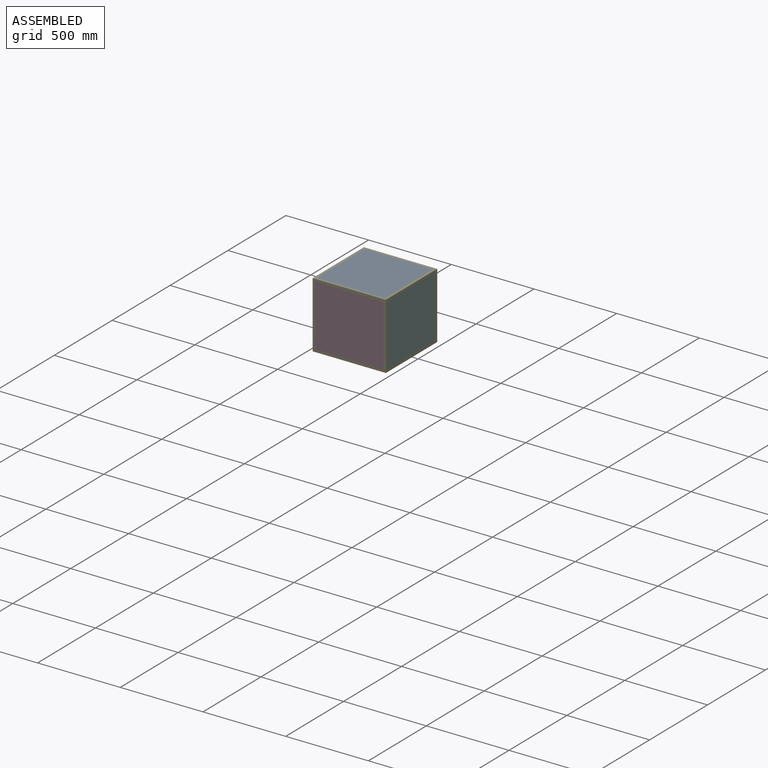
[diagram: assembled view]
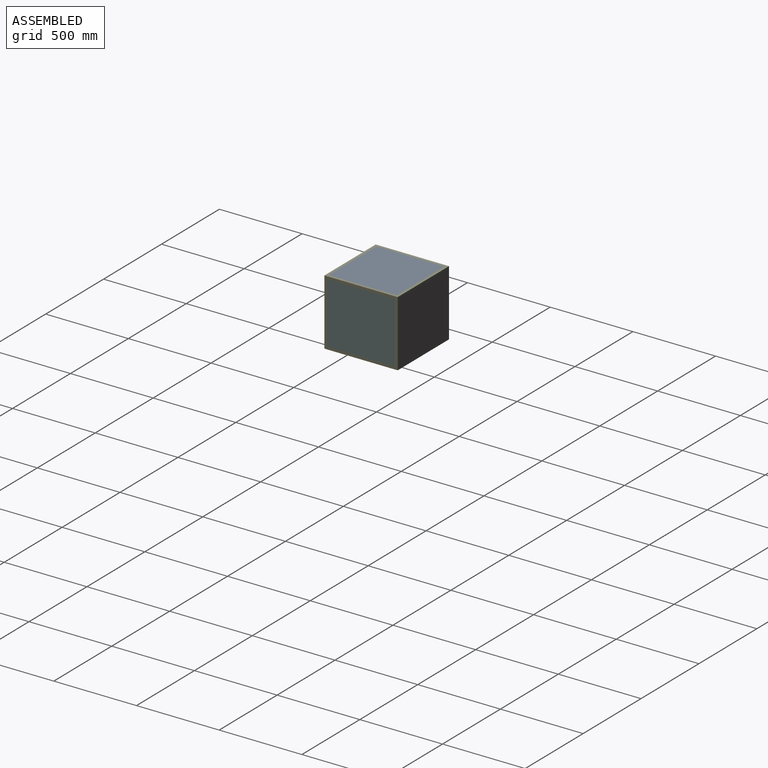
[diagram: assembled view, second angle]
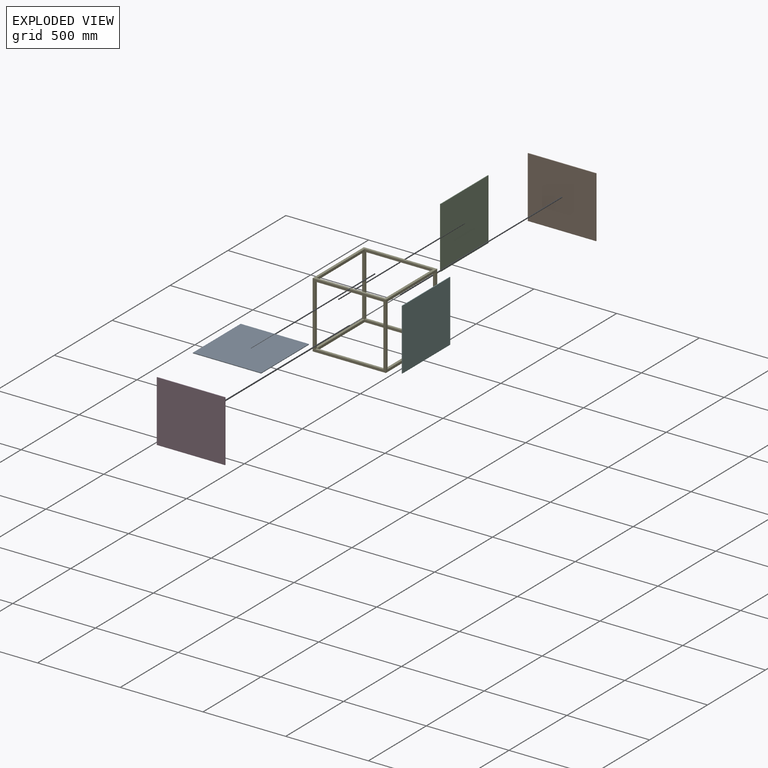
[diagram: exploded view]
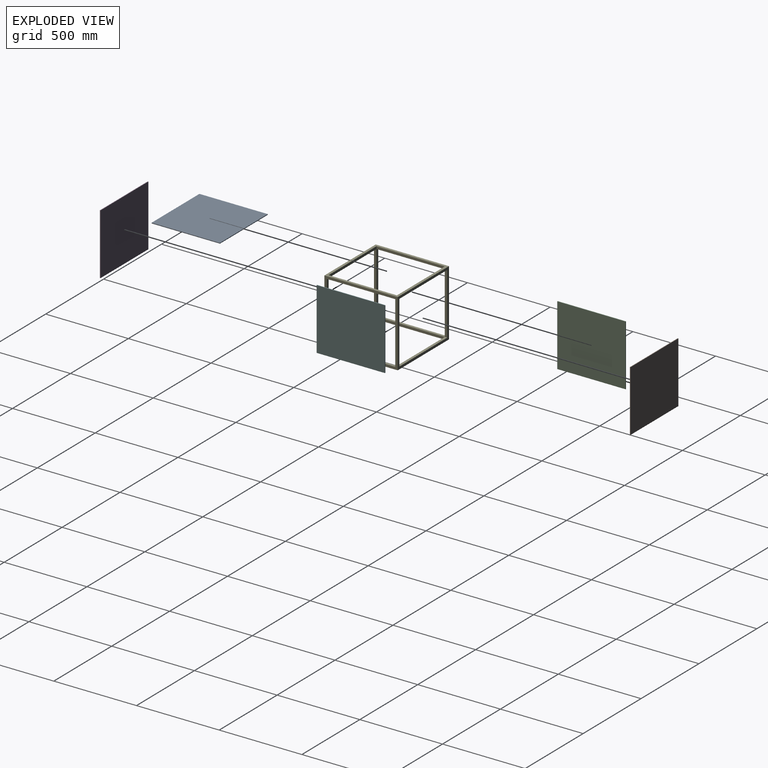
[diagram: exploded view, second angle]
ASSEMBLY  parts=6 mates=15
PART A: 6 faces, bbox 413x413x4 mm
  f0: plane 413x4mm, normal (-1,0,0), area 1652mm2, adj f1,f3,f4,f5
  f1: plane 413x4mm, normal (0,-1,0), area 1652mm2, adj f0,f2,f4,f5
  f2: plane 413x4mm, normal (1,0,0), area 1652mm2, adj f1,f3,f4,f5
  f3: plane 413x4mm, normal (0,1,0), area 1652mm2, adj f0,f2,f4,f5
  f4: plane 413x413mm, normal (0,0,1), area 170569mm2, adj f0,f1,f2,f3
  f5: plane 413x413mm, normal (0,0,-1), area 170569mm2, adj f0,f1,f2,f3
PART B: 6 faces, bbox 413x4x370 mm
  f0: plane 413x4mm, normal (0,0,1), area 1652mm2, adj f1,f3,f4,f5
  f1: plane 370x4mm, normal (-1,0,0), area 1480mm2, adj f0,f2,f4,f5
  f2: plane 413x4mm, normal (0,0,-1), area 1652mm2, adj f1,f3,f4,f5
  f3: plane 370x4mm, normal (1,0,0), area 1480mm2, adj f0,f2,f4,f5
  f4: plane 413x370mm, normal (0,-1,0), area 152810mm2, adj f0,f1,f2,f3
  f5: plane 413x370mm, normal (0,1,0), area 152810mm2, adj f0,f1,f2,f3
PART C: same geometry as B
PART D: same geometry as B
PART E: 30 faces, bbox 443x443x400 mm
  f0: plane 413x15mm, normal (0,0,1), area 6195mm2, adj f9,f11,f18,f19
  f1: plane 413x15mm, normal (0,0,1), area 6195mm2, adj f6,f10,f16,f17
  f2: plane 413x15mm, normal (0,0,1), area 6195mm2, adj f4,f8,f14,f20
  f3: plane 413x15mm, normal (0,0,1), area 6195mm2, adj f5,f7,f13,f15
  f4: plane 413x15mm, normal (0,1,0), area 6195mm2, adj f2,f5,f11,f12
  f5: plane 413x15mm, normal (1,0,0), area 6195mm2, adj f3,f4,f6,f12
  f6: plane 413x15mm, normal (0,-1,0), area 6195mm2, adj f1,f5,f11,f12
  f7: plane 443x400mm, normal (-1,0,0), area 24390mm2, adj f3,f8,f10,f12,f13,f15,f22,f28
  f8: plane 443x400mm, normal (0,-1,0), area 24390mm2, adj f2,f7,f9,f12,f14,f20,f21,f28
  f9: plane 443x400mm, normal (1,0,0), area 24390mm2, adj f0,f8,f10,f12,f18,f19,f23,f28
  f10: plane 443x400mm, normal (0,1,0), area 24390mm2, adj f1,f7,f9,f12,f16,f17,f28,f29
  f11: plane 413x15mm, normal (-1,0,0), area 6195mm2, adj f0,f4,f6,f12
  f12: plane 443x443mm, normal (0,0,-1), area 25680mm2, adj f4,f5,f6,f7,f8,f9,f10,f11
  f13: plane 370x15mm, normal (0,1,0), area 5550mm2, adj f3,f7,f14,f22
  f14: plane 370x15mm, normal (1,0,0), area 5550mm2, adj f2,f8,f13,f21
  f15: plane 370x15mm, normal (0,-1,0), area 5550mm2, adj f3,f7,f16,f22
  f16: plane 370x15mm, normal (1,0,0), area 5550mm2, adj f1,f10,f15,f29
  f17: plane 370x15mm, normal (-1,0,0), area 5550mm2, adj f1,f10,f18,f29
  f18: plane 370x15mm, normal (0,-1,0), area 5550mm2, adj f0,f9,f17,f23
  f19: plane 370x15mm, normal (0,1,0), area 5550mm2, adj f0,f9,f20,f23
  f20: plane 370x15mm, normal (-1,0,0), area 5550mm2, adj f2,f8,f19,f21
  f21: plane 413x15mm, normal (0,0,-1), area 6195mm2, adj f8,f14,f20,f24
  f22: plane 413x15mm, normal (0,0,-1), area 6195mm2, adj f7,f13,f15,f25
  f23: plane 413x15mm, normal (0,0,-1), area 6195mm2, adj f9,f18,f19,f27
  f24: plane 413x15mm, normal (0,1,0), area 6195mm2, adj f21,f25,f27,f28
  f25: plane 413x15mm, normal (1,0,0), area 6195mm2, adj f22,f24,f26,f28
  f26: plane 413x15mm, normal (0,-1,0), area 6195mm2, adj f25,f27,f28,f29
  f27: plane 413x15mm, normal (-1,0,0), area 6195mm2, adj f23,f24,f26,f28
  f28: plane 443x443mm, normal (0,0,1), area 25680mm2, adj f7,f8,f9,f10,f24,f25,f26,f27
  f29: plane 413x15mm, normal (0,0,-1), area 6195mm2, adj f10,f16,f17,f26
PART F: same geometry as B
PLACE A t=(-261.68,39.19,430.79)mm
PLACE B t=(-249.92,298.54,221.75)mm
PLACE C rot(axis=(0,0,-1),90deg) t=(-482.42,62.05,221.75)mm
PLACE D t=(-249.92,-140.46,221.75)mm
PLACE E t=(-265.45,84.5,34.79)mm
PLACE F rot(axis=(0,0,-1),90deg) t=(-43.42,62.05,221.75)mm
MATE planar F.f0 <-> E.f23  axis (0,0,1) through (-45.42,77.04,419.79)mm
MATE planar F.f1 <-> E.f18  axis (0,1,0) through (-45.42,283.54,234.79)mm
MATE planar E.f9 <-> F.f5  axis (1,0,0) through (-43.42,77.04,234.79)mm
MATE planar A.f1 <-> E.f24  axis (0,-1,0) through (-264.92,-129.46,432.79)mm
MATE planar C.f3 <-> E.f13  axis (0,-1,0) through (-486.42,-129.46,234.79)mm
MATE planar E.f3 <-> C.f2  axis (0,0,1) through (-478.92,77.04,49.79)mm
MATE planar D.f4 <-> E.f8  axis (0,-1,0) through (-264.92,-144.46,234.79)mm
MATE planar E.f29 <-> B.f0  axis (0,0,-1) through (-264.92,291.04,419.79)mm
MATE planar D.f3 <-> E.f20  axis (1,0,0) through (-58.42,-142.46,234.79)mm
MATE planar E.f28 <-> A.f4  axis (0,0,1) through (-264.92,77.04,434.79)mm
MATE planar A.f2 <-> E.f27  axis (1,0,0) through (-58.42,77.04,432.79)mm
MATE planar B.f5 <-> E.f10  axis (0,1,0) through (-264.92,298.54,234.79)mm
MATE planar C.f4 <-> E.f7  axis (-1,0,0) through (-486.42,77.04,234.79)mm
MATE planar D.f0 <-> E.f21  axis (0,0,1) through (-264.92,-142.46,419.79)mm
MATE planar B.f3 <-> E.f17  axis (1,0,0) through (-58.42,296.54,234.79)mm
